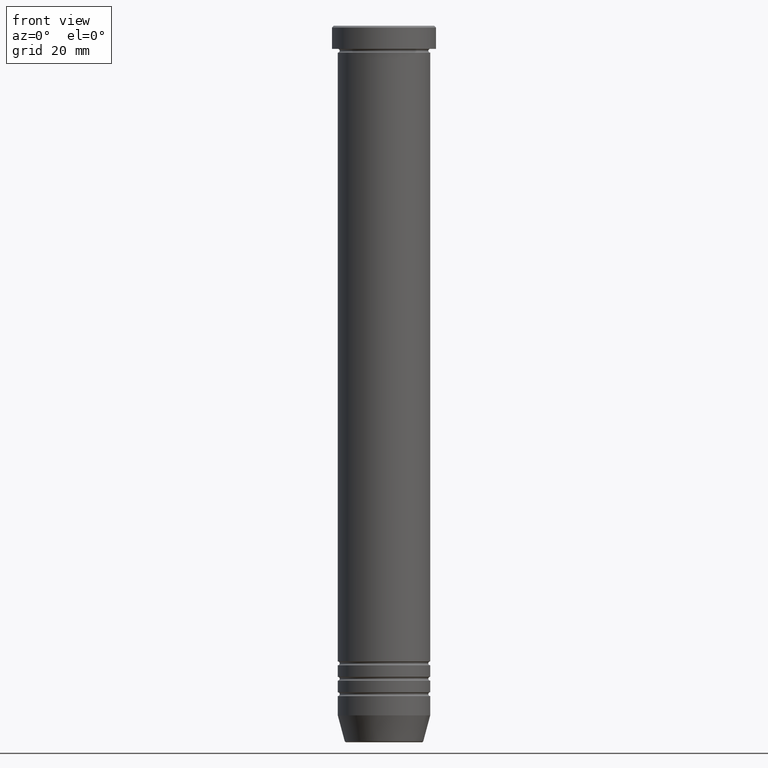
[diagram: clean part render]
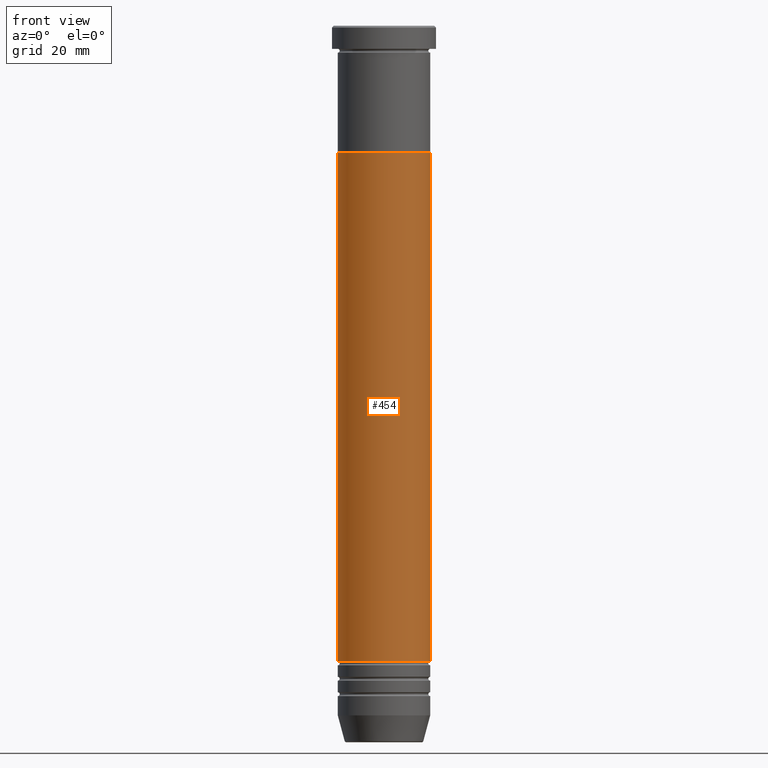
[diagram: same view with one face highlighted and labeled with its STEP entity id]
A machine part, front view. The second image highlights one B-rep face of the part: STEP entity #454.
In plain terms, the highlighted cylindrical surface (partial cylindrical patch) has radius 12 mm, axis along (-0, -0, 1).
Its self-contained STEP definition (entity closure, byte-faithful):
#75 = CIRCLE ( 'NONE', #387, 11.99999999999999467 ) ;
#129 = ORIENTED_EDGE ( 'NONE', *, *, #571, .T. ) ;
#240 = EDGE_CURVE ( 'NONE', #485, #258, #343, .T. ) ;
#251 = CARTESIAN_POINT ( 'NONE',  ( 0.000000000000000000, 0.000000000000000000, -165.0000000000000000 ) ) ;
#258 = VERTEX_POINT ( 'NONE', #1123 ) ;
#280 = VERTEX_POINT ( 'NONE', #1131 ) ;
#329 = LINE ( 'NONE', #1039, #742 ) ;
#343 = CIRCLE ( 'NONE', #371, 12.00000000000000178 ) ;
#351 = CARTESIAN_POINT ( 'NONE',  ( 11.99999999999999822, 0.000000000000000000, 0.000000000000000000 ) ) ;
#365 = CARTESIAN_POINT ( 'NONE',  ( 0.000000000000000000, 0.000000000000000000, 0.000000000000000000 ) ) ;
#371 = AXIS2_PLACEMENT_3D ( 'NONE', #864, #687, #583 ) ;
#387 = AXIS2_PLACEMENT_3D ( 'NONE', #251, #783, #559 ) ;
#450 = DIRECTION ( 'NONE',  ( 1.000000000000000000, 0.000000000000000000, 0.000000000000000000 ) ) ;
#454 = ADVANCED_FACE ( 'NONE', ( #477 ), #1014, .T. ) ;
#477 = FACE_OUTER_BOUND ( 'NONE', #660, .T. ) ;
#481 = ORIENTED_EDGE ( 'NONE', *, *, #858, .T. ) ;
#485 = VERTEX_POINT ( 'NONE', #740 ) ;
#527 = LINE ( 'NONE', #351, #1062 ) ;
#559 = DIRECTION ( 'NONE',  ( 1.000000000000000000, 0.000000000000000000, 0.000000000000000000 ) ) ;
#571 = EDGE_CURVE ( 'NONE', #790, #258, #527, .T. ) ;
#583 = DIRECTION ( 'NONE',  ( 1.000000000000000000, 0.000000000000000000, 0.000000000000000000 ) ) ;
#613 = DIRECTION ( 'NONE',  ( -0.000000000000000000, -0.000000000000000000, 1.000000000000000000 ) ) ;
#639 = DIRECTION ( 'NONE',  ( -0.000000000000000000, -0.000000000000000000, 1.000000000000000000 ) ) ;
#660 = EDGE_LOOP ( 'NONE', ( #1010, #481, #129, #812 ) ) ;
#687 = DIRECTION ( 'NONE',  ( -0.000000000000000000, -0.000000000000000000, 1.000000000000000000 ) ) ;
#740 = CARTESIAN_POINT ( 'NONE',  ( -12.00000000000000178, 1.469576158976824144E-15, -33.00000000000000000 ) ) ;
#742 = VECTOR ( 'NONE', #945, 1000.000000000000000 ) ;
#783 = DIRECTION ( 'NONE',  ( -0.000000000000000000, -0.000000000000000000, 1.000000000000000000 ) ) ;
#790 = VERTEX_POINT ( 'NONE', #1113 ) ;
#812 = ORIENTED_EDGE ( 'NONE', *, *, #240, .F. ) ;
#817 = AXIS2_PLACEMENT_3D ( 'NONE', #365, #639, #450 ) ;
#858 = EDGE_CURVE ( 'NONE', #280, #790, #75, .T. ) ;
#864 = CARTESIAN_POINT ( 'NONE',  ( 0.000000000000000000, 0.000000000000000000, -33.00000000000000000 ) ) ;
#882 = EDGE_CURVE ( 'NONE', #280, #485, #329, .T. ) ;
#945 = DIRECTION ( 'NONE',  ( -0.000000000000000000, -0.000000000000000000, 1.000000000000000000 ) ) ;
#1010 = ORIENTED_EDGE ( 'NONE', *, *, #882, .F. ) ;
#1014 = CYLINDRICAL_SURFACE ( 'NONE', #817, 11.99999999999999822 ) ;
#1039 = CARTESIAN_POINT ( 'NONE',  ( -11.99999999999999822, 1.469576158976823750E-15, 0.000000000000000000 ) ) ;
#1062 = VECTOR ( 'NONE', #613, 1000.000000000000000 ) ;
#1113 = CARTESIAN_POINT ( 'NONE',  ( 11.99999999999999467, 0.000000000000000000, -165.0000000000000000 ) ) ;
#1123 = CARTESIAN_POINT ( 'NONE',  ( 12.00000000000000178, 0.000000000000000000, -33.00000000000000000 ) ) ;
#1131 = CARTESIAN_POINT ( 'NONE',  ( -11.99999999999999467, 1.469576158976823553E-15, -165.0000000000000000 ) ) ;